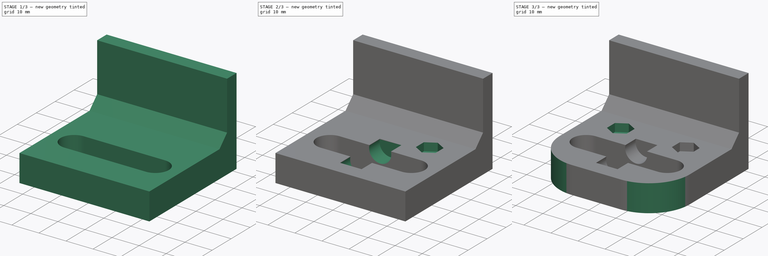
[diagram: build sequence overview — one tinted view per stage of 3, left to right]
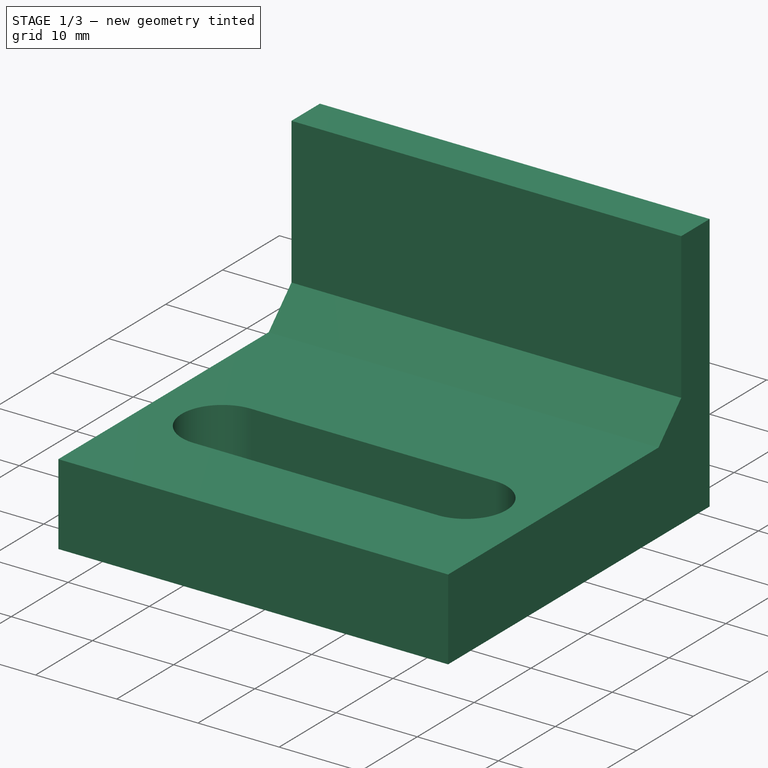
[diagram: stage 1 of 3 — iso view after this stage's code; geometry added in this stage tinted green]
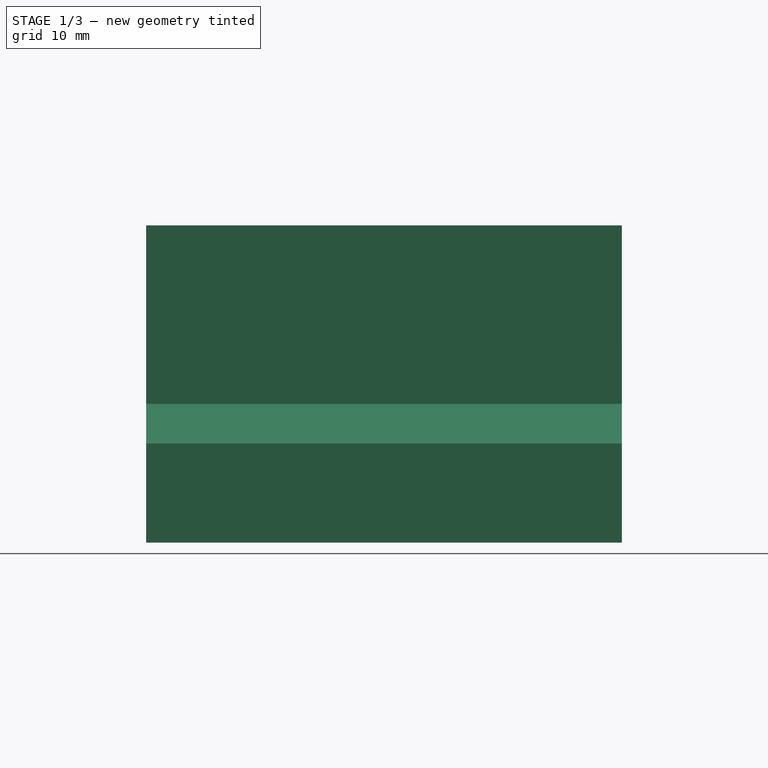
[diagram: stage 1 of 3 — front view after this stage's code; geometry added in this stage tinted green]
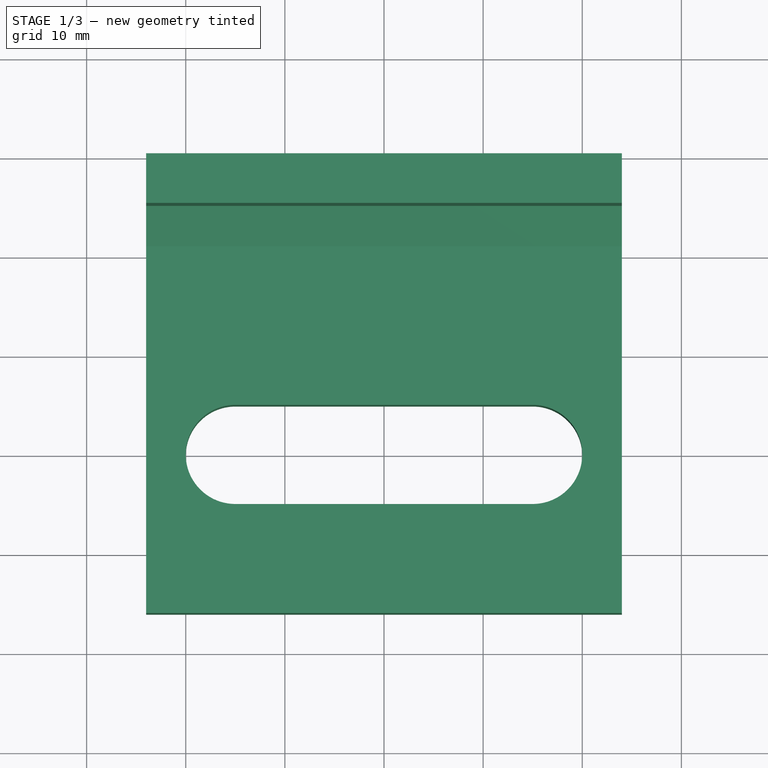
[diagram: stage 1 of 3 — top view after this stage's code; geometry added in this stage tinted green]
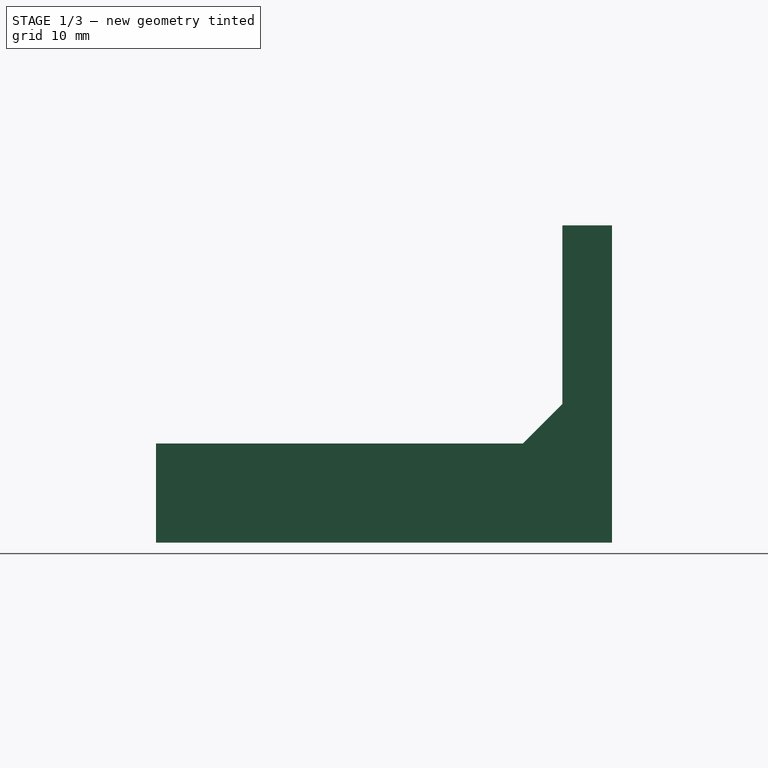
[diagram: stage 1 of 3 — right view after this stage's code; geometry added in this stage tinted green]
FCSTD DOCUMENT  (FreeCAD 0.20R29410 (Git))
Label: TableRollerBracket
License: All rights reserved
LicenseURL: http://en.wikipedia.org/wiki/All_rights_reserved
objects: Sketcher::SketchObject×6, PartDesign::Pocket×4, App::DocumentObjectGroup×3, PartDesign::CoordinateSystem×2, App::FeaturePython×1, PartDesign::Pad×1, PartDesign::Hole×1, PartDesign::Mirrored×1, PartDesign::Body×1, App::Part×1
note: 22 computed .brp shape members not serialized (recipe doc carries the construction recipe); baked Part::Feature solids carry a one-line shape summary decoded from their .brp

FEATURE [App::DocumentObjectGroup] Parts
FEATURE [PartDesign::CoordinateSystem] LCS_Origin
  AttacherType = Attacher::AttachEngine3D
  MapMode = 2
  Support = -> [X_Axis]
FEATURE [App::FeaturePython] Variables  # WARN: FeaturePython — macro-defined, semantics opaque (R4)
  Type = App::PropertyContainer
FEATURE [App::DocumentObjectGroup] Constraints
FEATURE [App::DocumentObjectGroup] Configurations
FEATURE [Sketcher::SketchObject] Sketch
  FullyConstrained = true
  MapMode = 5
  Support = -> [XY_Plane001]
  sketch-geometry (4):
    g0: ArcOfCircle CenterX=-15 CenterY=0 CenterZ=0 NormalX=0 NormalY=0 NormalZ=1 AngleXU=0 Radius=5 StartAngle=1.5708 EndAngle=4.71239
    g1: ArcOfCircle CenterX=15 CenterY=0 CenterZ=0 NormalX=0 NormalY=0 NormalZ=1 AngleXU=0 Radius=5 StartAngle=4.71239 EndAngle=7.85398
    g2: LineSegment StartX=-15 StartY=-5 StartZ=0 EndX=15 EndY=-5 EndZ=0
    g3: LineSegment StartX=15 StartY=5 StartZ=0 EndX=-15 EndY=5 EndZ=0
  constraints (9):
    c: Tangent(g0,g2) = -1.5708
    c: Tangent(g2,g1) = -1.5708
    c: Tangent(g1,g3) = -1.5708
    c: Tangent(g3,g0) = -1.5708
    c: Equal(g0,g1)
    c: PointOnObject(g0,g-1)
    c: DistanceY(g1,g1) = 10
    c: Symmetric(g1,g0,g-1)
    c: DistanceX(g0,g1) = 30
FEATURE [Sketcher::SketchObject] Sketch001
  FullyConstrained = true
  MapMode = 5
  Placement = pos=(0,0,0) rot=(0.57735,0.57735,0.57735;2.0944rad)
  Support = -> [YZ_Plane001]
  sketch-geometry (9):
    g0: LineSegment StartX=-16 StartY=0 StartZ=0 EndX=-16 EndY=10 EndZ=0
    g1: LineSegment StartX=25 StartY=32 StartZ=0 EndX=30 EndY=32 EndZ=0
    g2: LineSegment StartX=30 StartY=32 StartZ=0 EndX=30 EndY=0 EndZ=0
    g3: LineSegment StartX=30 StartY=0 StartZ=0 EndX=-16 EndY=0 EndZ=0
    g4: LineSegment StartX=25 StartY=10 StartZ=0 EndX=25 EndY=14 EndZ=0
    g5: LineSegment StartX=25 StartY=14 StartZ=0 EndX=25 EndY=32 EndZ=0
    g6: LineSegment StartX=-16 StartY=10 StartZ=0 EndX=21 EndY=10 EndZ=0
    g7: LineSegment StartX=21 StartY=10 StartZ=0 EndX=25 EndY=10 EndZ=0
    g8: LineSegment StartX=21 StartY=10 StartZ=0 EndX=25 EndY=14 EndZ=0
  constraints (27):
    c: PointOnObject(g0,g-1)
    c: Vertical(g0)
    c: Coincident(g0,g6)
    c: Coincident(g7,g4)
    c: Coincident(g5,g1)
    c: Horizontal(g1)
    c: Coincident(g1,g2)
    c: PointOnObject(g2,g-1)
    c: Vertical(g2)
    c: Coincident(g2,g3)
    c: Coincident(g3,g0)
    c: DistanceX(g1,g1) = 5
    c: DistanceX(g3,g3) = 46
    c: DistanceX(g-1,g2) = 30
    c: DistanceY(g0,g0) = 10  'BaseHeight'
    c: DistanceY(g2,g2) = 32
    c: Coincident(g4,g5)
    c: Vertical(g4)
    c: Vertical(g5)
    c: Coincident(g6,g7)
    c: Horizontal(g6)
    c: Horizontal(g7)
    c: Coincident(g8,g6)
    c: Coincident(g8,g4)
    c: Equal(g4,g7)
    c: DistanceX(g7,g7) = 4
    c: DistanceX(g0,g-1) = 16  'BaseBackOffset'
FEATURE [PartDesign::Pad] Pad
  Direction = (1,-2e-16,3e-16)
  Length = 48
  Length2 = 10
  Midplane = true
  Placement = pos=(0,0,0) rot=(0.57735,0.57735,0.57735;2.0944rad)
  Profile = -> Sketch001
  ReferenceAxis = -> Sketch001 [N_Axis]
  Type = 0
FEATURE [PartDesign::Pocket] Pocket  label="RollerSlot"
  BaseFeature = -> Pad
  Direction = (0,0,-1)
  Length = 5
  Length2 = 5
  Midplane = true
  Placement = pos=(0,0,0) rot=(0.57735,0.57735,0.57735;2.0944rad)
  Profile = -> Sketch
  ReferenceAxis = -> Sketch [N_Axis]
  Type = 1
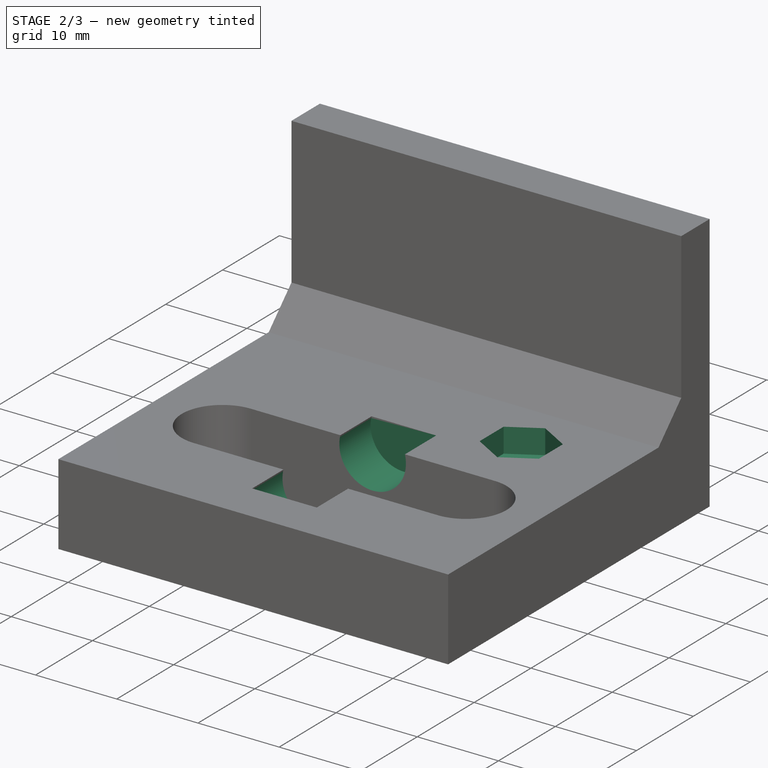
[diagram: stage 2 of 3 — iso view after this stage's code; geometry added in this stage tinted green]
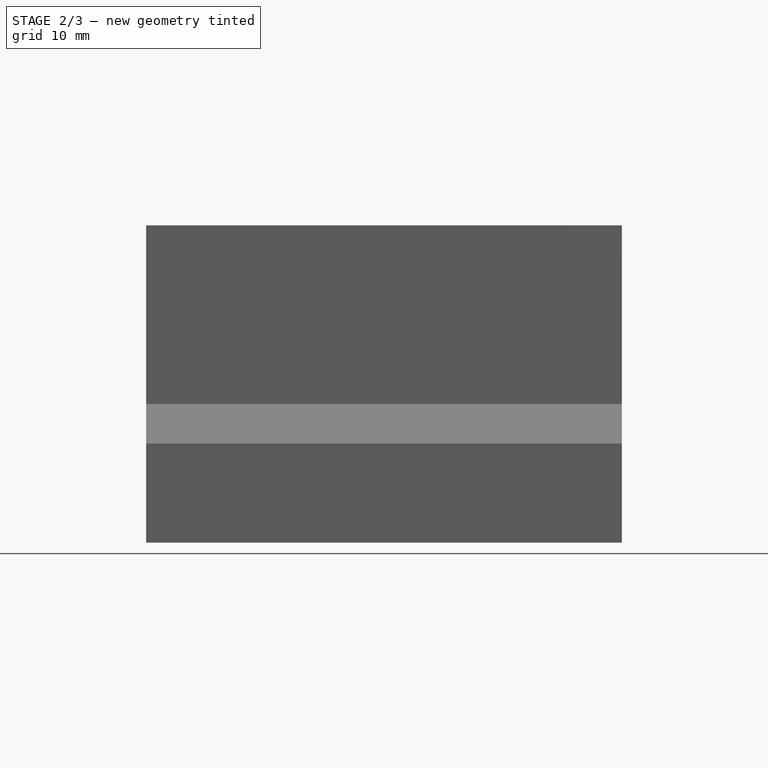
[diagram: stage 2 of 3 — front view after this stage's code; geometry added in this stage tinted green]
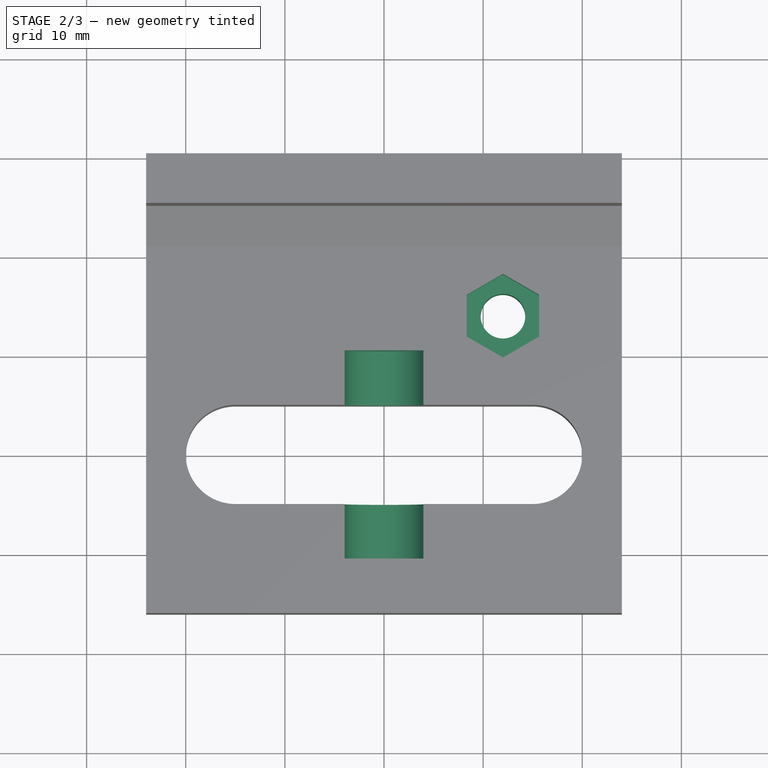
[diagram: stage 2 of 3 — top view after this stage's code; geometry added in this stage tinted green]
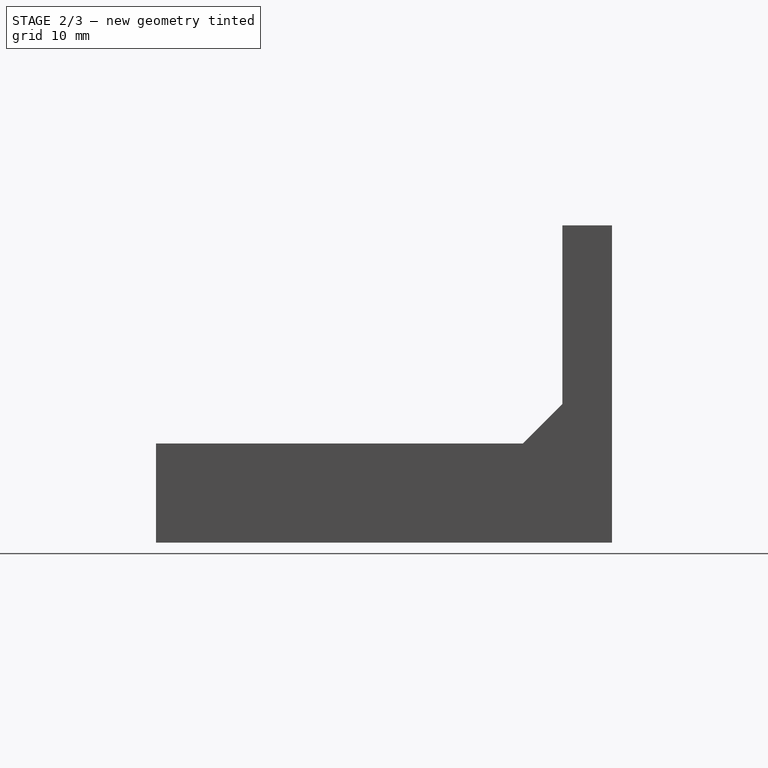
[diagram: stage 2 of 3 — right view after this stage's code; geometry added in this stage tinted green]
FEATURE [Sketcher::SketchObject] Sketch002  label="AxleSketch"
  FullyConstrained = true
  MapMode = 5
  Placement = pos=(0,0,0) rot=(1,0,0;1.5708rad)
  Support = -> [XZ_Plane001]
  sketch-geometry (1):
    g0: Circle CenterX=0 CenterY=9 CenterZ=0 NormalX=0 NormalY=0 NormalZ=1 AngleXU=0 Radius=4.1
  constraints (3):
    c: PointOnObject(g0,g-2)
    c: Diameter(g0) = 8.2
    c: DistanceY(g-1,g0) = 9  'AxleOffset'
FEATURE [PartDesign::Pocket] Pocket001  label="RollerAxle"
  BaseFeature = -> Pocket
  Direction = (0,1,-2e-16)
  Length = 21
  Length2 = 5
  Midplane = true
  Placement = pos=(0,0,0) rot=(0.57735,0.57735,0.57735;2.0944rad)
  Profile = -> Sketch002
  ReferenceAxis = -> Sketch002 [N_Axis]
  Type = 0
FEATURE [Sketcher::SketchObject] Sketch003
  AttachmentOffset = pos=(12,14,0) rot=(0,0,1;0rad)
  FullyConstrained = true
  MapMode = 5
  Placement = pos=(12,14,0) rot=(0,0,1;0rad)
  Support = -> [XY_Plane001]
  sketch-geometry (1):
    g0: Circle CenterX=0 CenterY=0 CenterZ=0 NormalX=0 NormalY=0 NormalZ=1 AngleXU=0 Radius=1.5
  constraints (2):
    c: Coincident(g0,g-1)
    c: Diameter(g0) = 3
FEATURE [PartDesign::Hole] Hole  label="BaseMountHole"
  BaseFeature = -> Pocket001
  CustomThreadClearance = 0
  Depth = 154.21
  DepthType = 1
  Diameter = 4.5
  DrillForDepth = false
  DrillPoint = 1
  DrillPointAngle = 118
  HoleCutCountersinkAngle = 90
  HoleCutCustomValues = false
  HoleCutDepth = 0
  HoleCutDiameter = 6.1
  HoleCutType = 0
  ModelThread = false
  Placement = pos=(0,0,0) rot=(0.57735,0.57735,0.57735;2.0944rad)
  Profile = -> Sketch003
  Reversed = true
  Tapered = false
  TaperedAngle = 90
  ThreadClass = 0
  ThreadDepth = 154.21
  ThreadDepthType = 0
  ThreadDirection = 0
  ThreadFit = 0
  ThreadSize = 11
  ThreadType = 1
  Threaded = false
  UseCustomThreadClearance = false
FEATURE [Sketcher::SketchObject] Sketch004
  AttachmentOffset = pos=(0,0,7) rot=(0,0,1;0rad)
  FullyConstrained = true
  MapMode = 2
  Placement = pos=(12,14,7) rot=(0,0,1;0rad)
  Support = -> [Sketch003]
  expr: .AttachmentOffset.Base.z = <<Sketch001>>.Constraints.BaseHeight - 3mm
  sketch-geometry (7):
    g0: LineSegment StartX=0 StartY=4.21466 StartZ=0 EndX=-3.65 EndY=2.10733 EndZ=0
    g1: LineSegment StartX=-3.65 StartY=2.10733 StartZ=0 EndX=-3.65 EndY=-2.10733 EndZ=0
    g2: LineSegment StartX=-3.65 StartY=-2.10733 StartZ=0 EndX=9e-16 EndY=-4.21466 EndZ=0
    g3: LineSegment StartX=9e-16 StartY=-4.21466 StartZ=0 EndX=3.65 EndY=-2.10733 EndZ=0
    g4: LineSegment StartX=3.65 StartY=-2.10733 StartZ=0 EndX=3.65 EndY=2.10733 EndZ=0
    g5: LineSegment StartX=3.65 StartY=2.10733 StartZ=0 EndX=0 EndY=4.21466 EndZ=0
    g6: Circle CenterX=0 CenterY=0 CenterZ=0 NormalX=0 NormalY=0 NormalZ=1 AngleXU=0 Radius=4.21466
  constraints (16):
    c: Coincident(g0,g1)
    c: Coincident(g1,g2)
    c: Coincident(g2,g3)
    c: Coincident(g3,g4)
    c: Coincident(g4,g5)
    c: Coincident(g5,g0)
    c: Equal(g0, g1-g5) x5
    c: PointOnObject(g0,g6)
    c: PointOnObject(g1,g6)
    c: PointOnObject(g2,g6)
    c: PointOnObject(g3,g6)
    c: PointOnObject(g4,g6)
    c: PointOnObject(g5,g6)
    c: Coincident(g6,g-1)
    c: PointOnObject(g5,g-2)
    c: Distance(g4,g0) = 7.3
FEATURE [PartDesign::Pocket] Pocket002  label="BaseMountNutPocket"
  BaseFeature = -> Hole
  Direction = (0,0,-1)
  Length = 5
  Length2 = 5
  Placement = pos=(0,0,0) rot=(0.57735,0.57735,0.57735;2.0944rad)
  Profile = -> Sketch004
  ReferenceAxis = -> Sketch004 [N_Axis]
  Reversed = true
  Type = 1
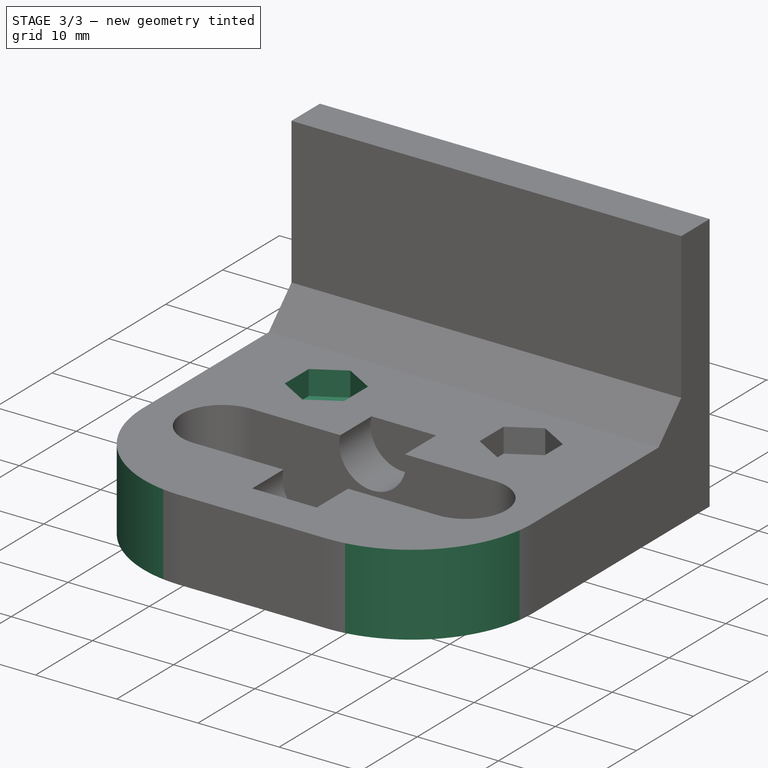
[diagram: stage 3 of 3 — iso view after this stage's code; geometry added in this stage tinted green]
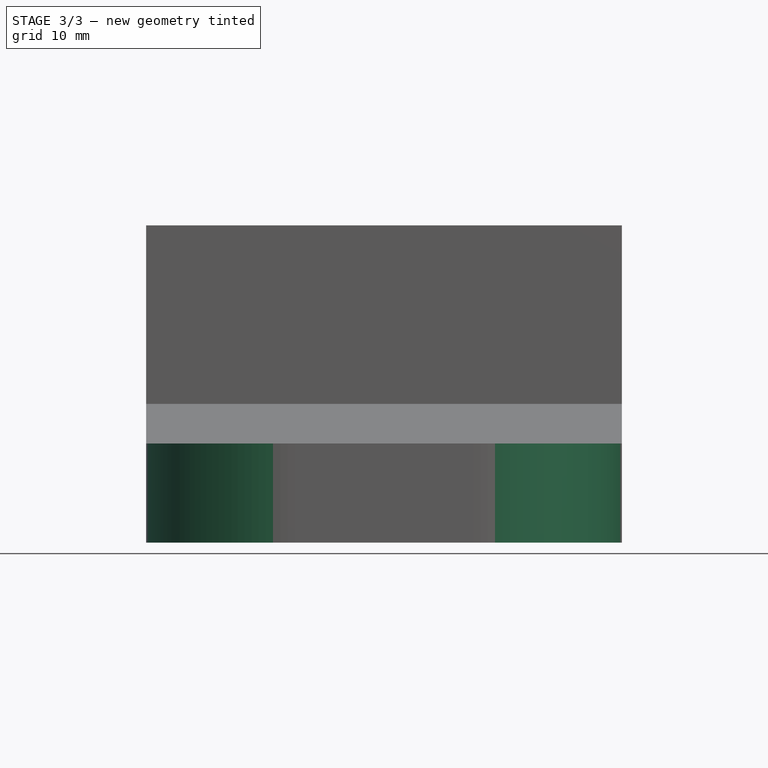
[diagram: stage 3 of 3 — front view after this stage's code; geometry added in this stage tinted green]
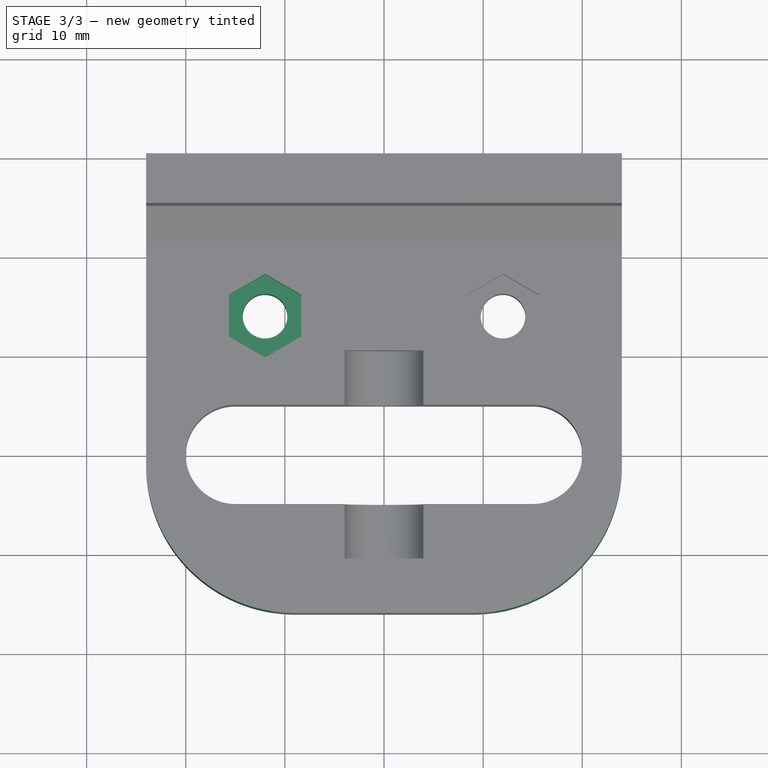
[diagram: stage 3 of 3 — top view after this stage's code; geometry added in this stage tinted green]
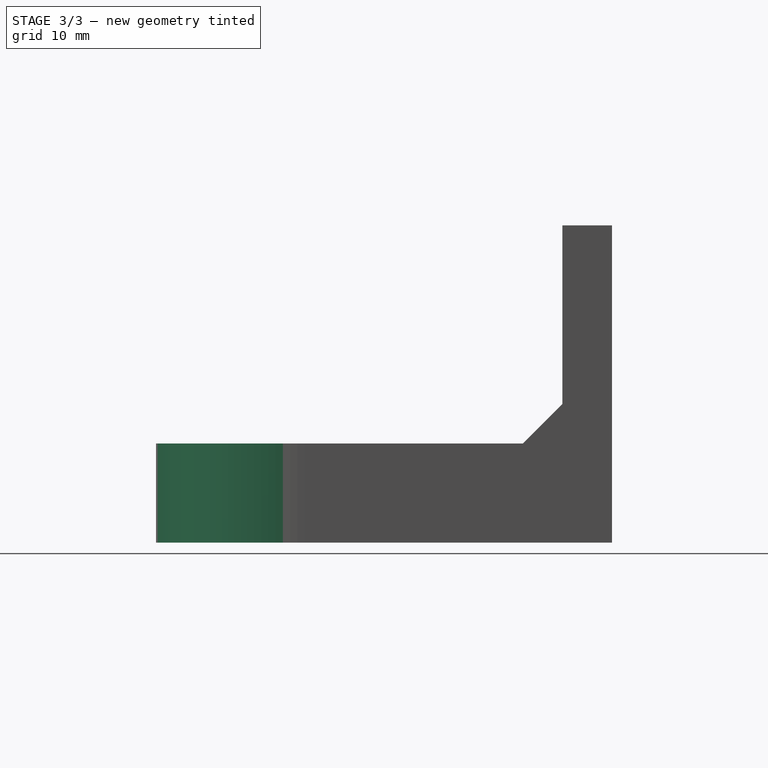
[diagram: stage 3 of 3 — right view after this stage's code; geometry added in this stage tinted green]
FEATURE [PartDesign::Mirrored] Mirrored  label="BaseMountMirror"
  BaseFeature = -> Pocket002
  MirrorPlane = -> YZ_Plane001
  Originals = -> [Pocket002,Hole]
  Placement = pos=(0,0,0) rot=(0.57735,0.57735,0.57735;2.0944rad)
FEATURE [Sketcher::SketchObject] Sketch005
  FullyConstrained = true
  MapMode = 5
  Support = -> [XY_Plane001]
  expr: Constraints[30] = <<Pad>>.Length
  expr: Constraints[31] = <<Sketch001>>.Constraints.BaseBackOffset
  sketch-geometry (12):
    g0: ArcOfCircle CenterX=-9 CenterY=-1 CenterZ=0 NormalX=0 NormalY=0 NormalZ=1 AngleXU=0 Radius=15 StartAngle=3.14159 EndAngle=4.71239
    g1: ArcOfCircle CenterX=9 CenterY=-1 CenterZ=0 NormalX=0 NormalY=0 NormalZ=1 AngleXU=0 Radius=15 StartAngle=4.71239 EndAngle=6.28319
    g2: LineSegment StartX=-9 StartY=-16 StartZ=0 EndX=9 EndY=-16 EndZ=0
    g3: LineSegment StartX=-24 StartY=-1 StartZ=0 EndX=-34 EndY=-1 EndZ=0
    g4: LineSegment StartX=34 StartY=-1 StartZ=0 EndX=24 EndY=-1 EndZ=0
    g5: LineSegment StartX=-24 StartY=-1 StartZ=0 EndX=24 EndY=-1 EndZ=0
    g6: LineSegment StartX=-24 StartY=-1 StartZ=0 EndX=-24 EndY=0 EndZ=0
    g7: LineSegment StartX=24 StartY=-1 StartZ=0 EndX=24 EndY=0 EndZ=0
    g8: GeomPoint X=0 Y=-1 Z=0
    g9: LineSegment StartX=34 StartY=-1 StartZ=0 EndX=34 EndY=-69 EndZ=0
    g10: LineSegment StartX=34 StartY=-69 StartZ=0 EndX=-34 EndY=-69 EndZ=0
    g11: LineSegment StartX=-34 StartY=-69 StartZ=0 EndX=-34 EndY=-1 EndZ=0
  constraints (32):
    c: Horizontal(g2)
    c: Tangent(g2,g1) = -1.5708
    c: Tangent(g2,g0) = -1.5708
    c: Equal(g1,g0)
    c: Radius(g1) = 15
    c: Coincident(g3,g0)
    c: Coincident(g4,g1)
    c: Coincident(g5,g0)
    c: Coincident(g5,g1)
    c: Horizontal(g5)
    c: Coincident(g6,g0)
    c: Vertical(g7)
    c: Vertical(g6)
    c: Symmetric(g0,g1,g8)
    c: PointOnObject(g8,g-2)
    c: Equal(g3,g4)
    c: Distance(g4) = 10
    c: Tangent(g7,g1) = -1.5708
    c: Horizontal(g3)
    c: Horizontal(g4)
    c: Coincident(g9,g4)
    c: Vertical(g9)
    c: Coincident(g10,g9)
    c: Horizontal(g10)
    c: Coincident(g11,g10)
    c: Coincident(g11,g3)
    c: Vertical(g11)
    c: Equal(g9,g10)
    c: PointOnObject(g7,g-1)
    c: PointOnObject(g6,g-1)
    c: DistanceX(g6,g7) = 48
    c: DistanceY(g0,g-1) = 16
FEATURE [PartDesign::Pocket] Pocket003  label="BaseFillet"
  BaseFeature = -> Mirrored
  Direction = (0,0,-1)
  Length = 5
  Length2 = 5
  Midplane = true
  Placement = pos=(0,0,0) rot=(0.57735,0.57735,0.57735;2.0944rad)
  Profile = -> Sketch005
  ReferenceAxis = -> Sketch005 [N_Axis]
  Type = 1
FEATURE [PartDesign::Body] Body
  Group = -> [Sketch,Sketch001,Pad,Pocket,Sketch002,Pocket001,Sketch003,Hole,Sketch004,Pocket002,Mirrored,Sketch005,Pocket003]
  Origin = -> Origin001
  Tip = -> Pocket003
FEATURE [PartDesign::CoordinateSystem] LCS_Axle
  AttacherType = Attacher::AttachEngine3D
  AttachmentOffset = pos=(0,0,9) rot=(0,0,1;0rad)
  MapMode = 2
  Placement = pos=(0,0,9) rot=(0,0,1;0rad)
  Support = -> [LCS_Origin]
  expr: .AttachmentOffset.Base.z = <<AxleSketch>>.Constraints.AxleOffset
FEATURE [App::Part] Assembly
  AssemblyType = Part::Link
  Group = -> [LCS_Origin,Variables,Constraints,Configurations,Body,LCS_Axle]
  Origin = -> Origin
  Type = Assembly
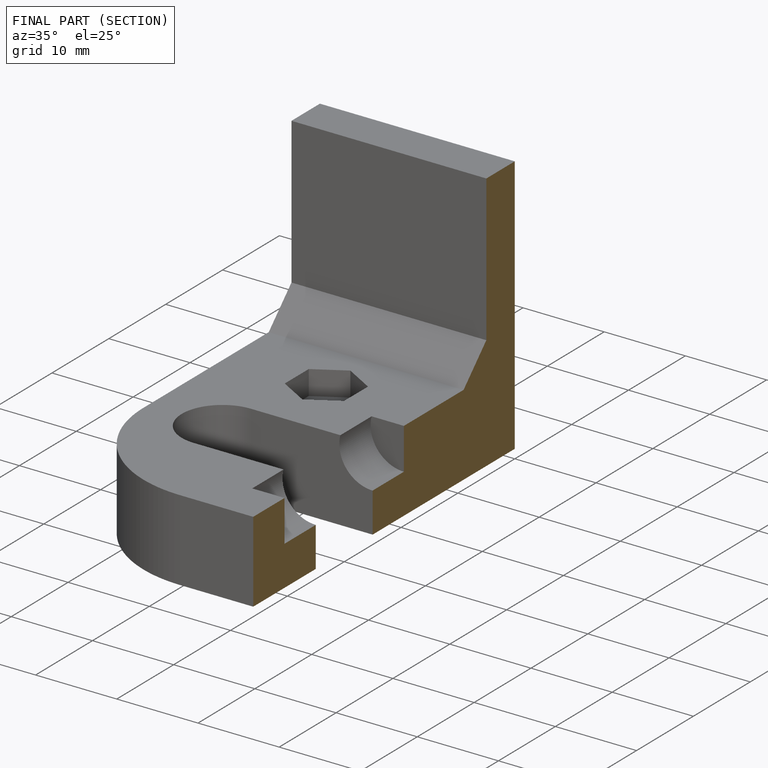
[diagram: finished part — half-section view (interior)]
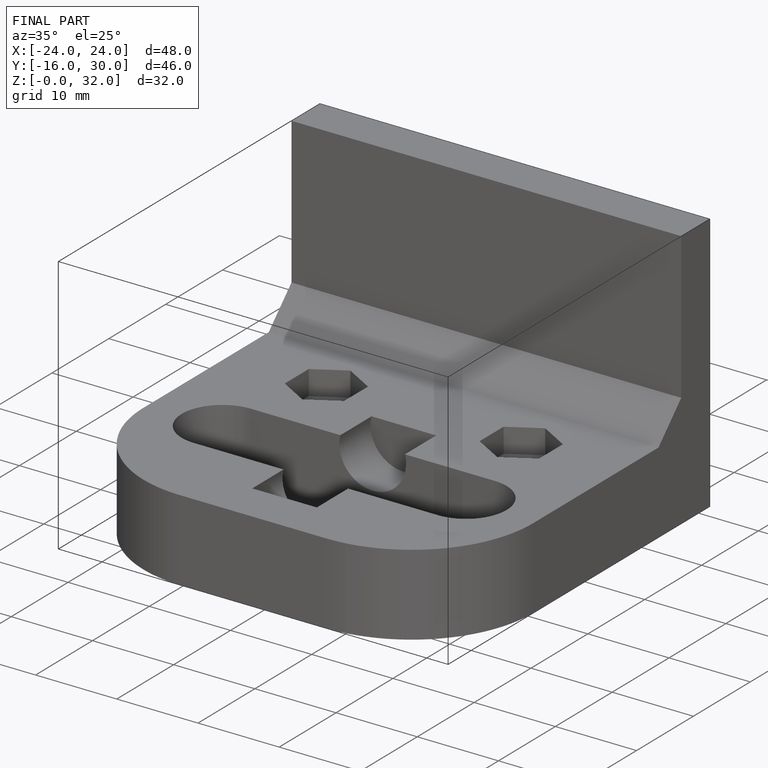
[diagram: finished part — iso view with bounding-box wireframe]
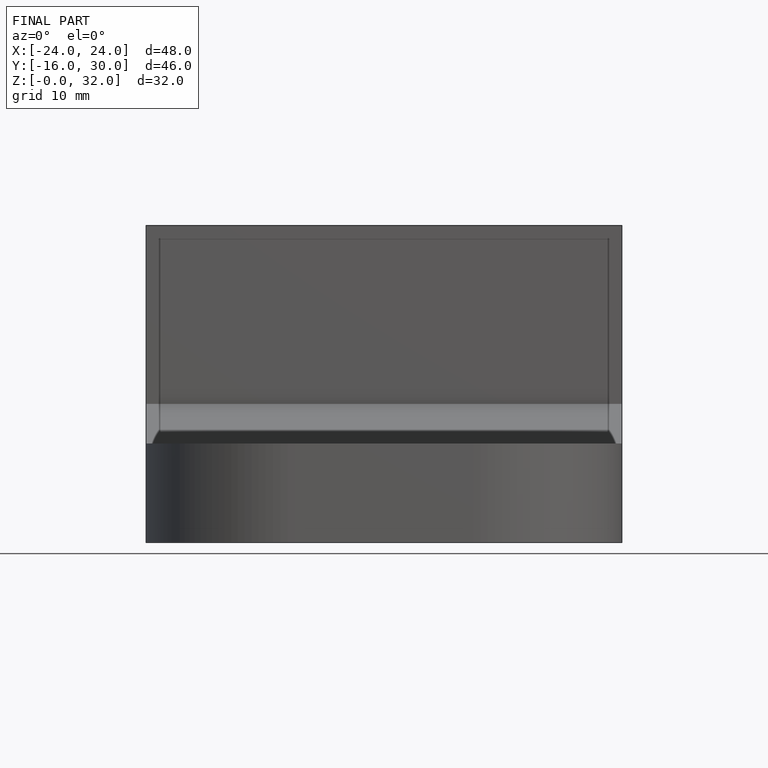
[diagram: finished part — front view with bounding-box wireframe]
